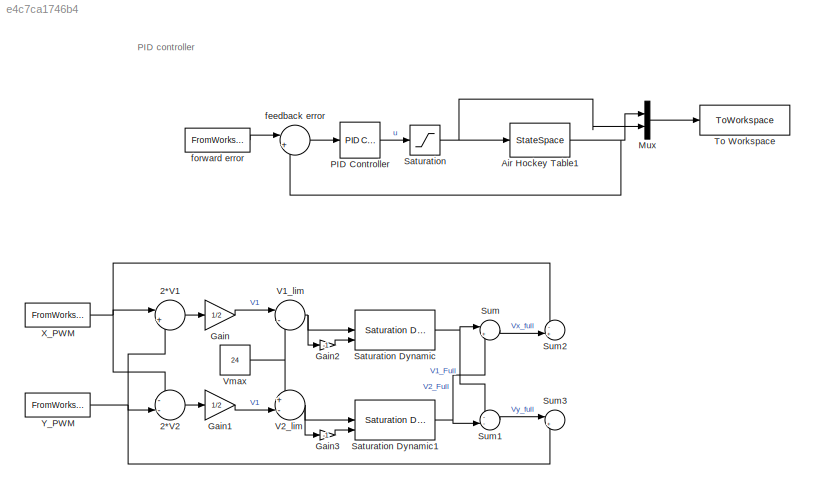
MODEL slx_e4c7ca1746b4
KIND model
CONFIG AbsTol = auto
CONFIG EnableMultiTasking = off
CONFIG FixedStep = auto
CONFIG MaxStep = auto
CONFIG MinStep = auto
CONFIG RelTol = 1e-3
CONFIG SampleTimeConstraint = Unconstrained
CONFIG SolverName = VariableStepAuto
CONFIG StartTime = 0.0
CONFIG StopTime = max(data.Time_ms_)/1000
BLOCK [Sum] 2*V1
  Inputs = |+-
  NameLocation = top
BLOCK [Sum] 2*V2
  Inputs = --|
BLOCK [StateSpace] Air Hockey Table1
  A = A
  B = B
  C = C
  D = D
  InitialCondition = [0;0;0]
BLOCK [Gain] Gain
  Gain = 1/2
BLOCK [Gain] Gain1
  Gain = 1/2
BLOCK [Gain] Gain2
  Gain = -1
BLOCK [Gain] Gain3
  Gain = -1
BLOCK [Mux] Mux
  DisplayOption = bar
  Inputs = 2
BLOCK [Reference] PID Controller  REF=slpidlib/PID Controller
  LibrarySourceBlock = simulink/Continuous/PID Controller
  SourceBlock = slpidlib/PID Controller
  SourceType = PID 1dof
BLOCK [Saturate] Saturation
  LowerLimit = -12
  UpperLimit = 12
BLOCK [Reference] Saturation Dynamic  REF=simulink/Discontinuities/Saturation
Dynamic
  SourceBlock = simulink/Discontinuities/Saturation\nDynamic
  SourceType = Saturation Dynamic
BLOCK [Reference] Saturation Dynamic1  REF=simulink/Discontinuities/Saturation
Dynamic
  SourceBlock = simulink/Discontinuities/Saturation\nDynamic
  SourceType = Saturation Dynamic
BLOCK [Sum] Sum
  Inputs = |+-
BLOCK [Sum] Sum1
  Inputs = --|
BLOCK [Sum] Sum2
  Inputs = -+|
BLOCK [Sum] Sum3
  Inputs = |+-
BLOCK [ToWorkspace] To Workspace
  FixptAsFi = on
  MaxDataPoints = inf
  SampleTime = -1
  SaveFormat = Timeseries
  VariableName = simout
BLOCK [Sum] V1_lim
  Inputs = |-+
  NameLocation = top
BLOCK [Sum] V2_lim
  Inputs = +-|
BLOCK [Constant] Vmax
  Value = 24
BLOCK [FromWorkspace] X_PWM
  VariableName = [data.Time_ms_/1000, data.X_PWM*24]
BLOCK [FromWorkspace] Y_PWM
  VariableName = [data.Time_ms_/1000, data.Y_PWM*24]
BLOCK [Sum] feedback error
  Inputs = |+-
BLOCK [FromWorkspace] forward error
  VariableName = [data.Time_ms_/1000, data.x_error]
ANNOTATION (root): PID controller
LINE 2*V1:1 -> Gain:1
LINE 2*V2:1 -> Gain1:1
NET Air Hockey Table1:1 -> Mux:1, feedback error:2
LINE Gain1:1 -> V2_lim:2
LINE Gain2:1 -> Saturation Dynamic:3
LINE Gain3:1 -> Saturation Dynamic1:3
LINE Gain:1 -> V1_lim:1
LINE Mux:1 -> To Workspace:1
LINE PID Controller:1 -> Saturation:1
NET Saturation Dynamic1:1 -> Sum1:2, Sum:2
NET Saturation Dynamic:1 -> Sum1:1, Sum:1
NET Saturation:1 -> Air Hockey Table1:1, Mux:2
LINE Sum1:1 -> Sum3:1
LINE Sum:1 -> Sum2:2
NET V1_lim:1 -> Gain2:1, Saturation Dynamic:1
NET V2_lim:1 -> Gain3:1, Saturation Dynamic1:1
NET Vmax:1 -> V1_lim:2, V2_lim:1
NET X_PWM:1 -> 2*V1:1, 2*V2:1, Sum2:1
NET Y_PWM:1 -> 2*V1:2, 2*V2:2, Sum3:2
LINE feedback error:1 -> PID Controller:1
LINE forward error:1 -> feedback error:1
note: NET lines group one-source signal fan-out (src -> all destinations, sorted); 1:1 wires keep LINE
